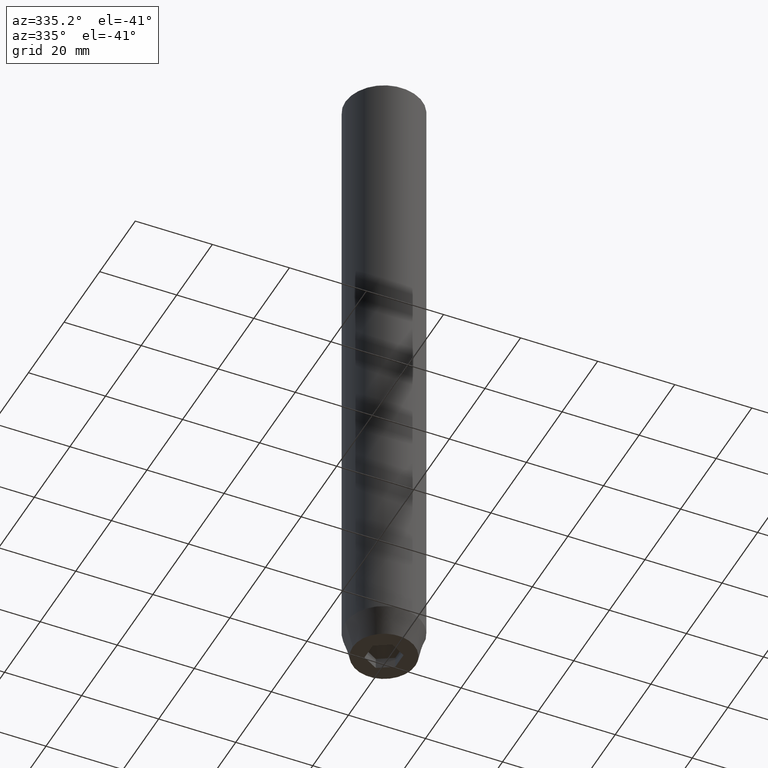
[diagram: clean part render]
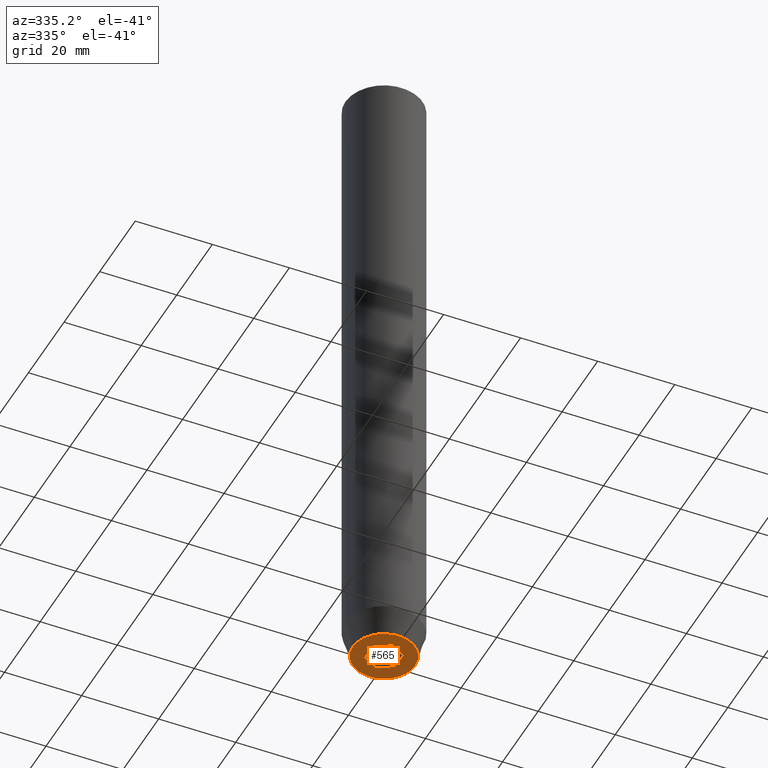
[diagram: same view with one face highlighted and labeled with its STEP entity id]
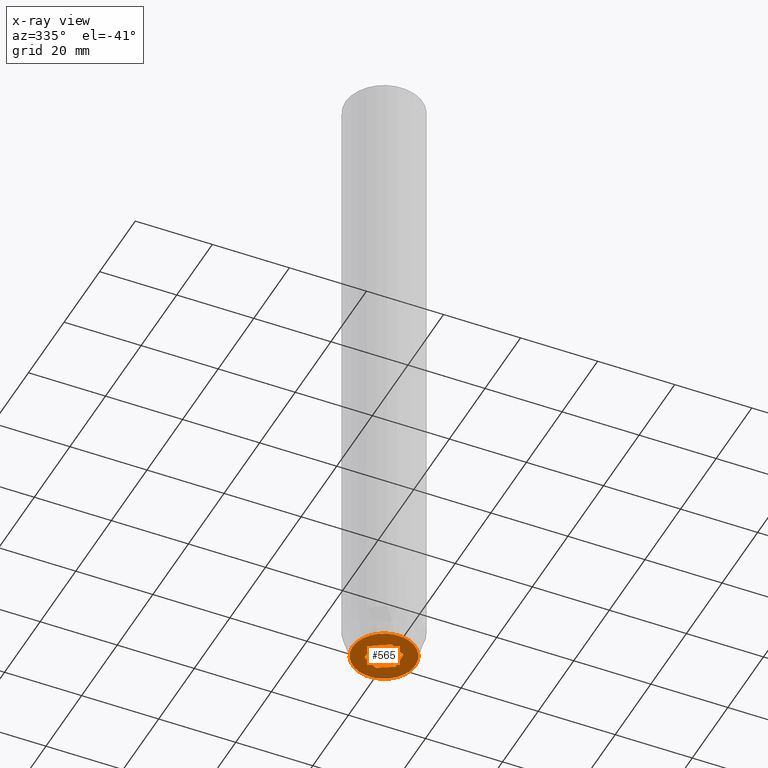
[diagram: x-ray of the same camera — body ghosted, the highlighted face saturated]
A machine part, auxiliary view. The second image highlights one B-rep face of the part: STEP entity #565.
The next image is the same camera in x-ray: the body ghosted, the highlighted face saturated — about 0% of this face is hidden behind the body in this view.
In plain terms, the highlighted planar face has unit normal (0, 0, -1).
Its self-contained STEP definition (entity closure, byte-faithful):
#4 = CARTESIAN_POINT ( 'NONE',  ( 2.000000000000000444, 3.464101615137754386, -170.0000000000000000 ) ) ;
#11 = DIRECTION ( 'NONE',  ( -0.000000000000000000, -0.000000000000000000, 1.000000000000000000 ) ) ;
#16 = DIRECTION ( 'NONE',  ( 0.8660254037844385966, -0.5000000000000001110, 0.000000000000000000 ) ) ;
#32 = VERTEX_POINT ( 'NONE', #563 ) ;
#35 = CARTESIAN_POINT ( 'NONE',  ( 0.000000000000000000, 8.124355652982128362, -170.0000000000000000 ) ) ;
#36 = VERTEX_POINT ( 'NONE', #105 ) ;
#44 = CARTESIAN_POINT ( 'NONE',  ( -2.000000000000000000, 3.464101615137754830, -170.0000000000000000 ) ) ;
#45 = CARTESIAN_POINT ( 'NONE',  ( 0.000000000000000000, 0.000000000000000000, -170.0000000000000000 ) ) ;
#48 = EDGE_CURVE ( 'NONE', #534, #484, #536, .T. ) ;
#49 = EDGE_CURVE ( 'NONE', #36, #557, #227, .T. ) ;
#55 = AXIS2_PLACEMENT_3D ( 'NONE', #45, #233, #319 ) ;
#63 = ORIENTED_EDGE ( 'NONE', *, *, #431, .F. ) ;
#69 = EDGE_CURVE ( 'NONE', #484, #230, #276, .T. ) ;
#74 = CARTESIAN_POINT ( 'NONE',  ( 4.000000000000000000, -2.309401076758502480, -170.0000000000000000 ) ) ;
#75 = EDGE_CURVE ( 'NONE', #557, #32, #289, .T. ) ;
#76 = DIRECTION ( 'NONE',  ( 0.000000000000000000, 1.000000000000000000, 0.000000000000000000 ) ) ;
#87 = DIRECTION ( 'NONE',  ( 0.8660254037844387076, 0.5000000000000001110, 0.000000000000000000 ) ) ;
#89 = ORIENTED_EDGE ( 'NONE', *, *, #49, .F. ) ;
#104 = CIRCLE ( 'NONE', #55, 8.124355652982128362 ) ;
#105 = CARTESIAN_POINT ( 'NONE',  ( -4.000000000000000000, 2.309401076758503368, -170.0000000000000000 ) ) ;
#108 = AXIS2_PLACEMENT_3D ( 'NONE', #512, #11, #467 ) ;
#113 = ORIENTED_EDGE ( 'NONE', *, *, #69, .F. ) ;
#143 = VECTOR ( 'NONE', #87, 999.9999999999998863 ) ;
#146 = CARTESIAN_POINT ( 'NONE',  ( -8.124355652982128362, 1.109796706851640162E-15, -170.0000000000000000 ) ) ;
#155 = ORIENTED_EDGE ( 'NONE', *, *, #394, .F. ) ;
#161 = EDGE_CURVE ( 'NONE', #230, #36, #493, .T. ) ;
#168 = VERTEX_POINT ( 'NONE', #146 ) ;
#214 = EDGE_CURVE ( 'NONE', #315, #168, #104, .T. ) ;
#217 = CARTESIAN_POINT ( 'NONE',  ( 4.336808689942017736E-16, -4.618802153517006737, -170.0000000000000000 ) ) ;
#227 = LINE ( 'NONE', #44, #143 ) ;
#228 = CARTESIAN_POINT ( 'NONE',  ( -4.000000000000000000, -2.309401076758503368, -170.0000000000000000 ) ) ;
#230 = VERTEX_POINT ( 'NONE', #228 ) ;
#232 = CARTESIAN_POINT ( 'NONE',  ( 2.000000000000000888, -3.464101615137754386, -170.0000000000000000 ) ) ;
#233 = DIRECTION ( 'NONE',  ( -0.000000000000000000, -0.000000000000000000, 1.000000000000000000 ) ) ;
#238 = ORIENTED_EDGE ( 'NONE', *, *, #161, .F. ) ;
#239 = CARTESIAN_POINT ( 'NONE',  ( -2.000000000000000888, -3.464101615137754386, -170.0000000000000000 ) ) ;
#246 = CARTESIAN_POINT ( 'NONE',  ( 8.124355652982128362, 0.000000000000000000, -170.0000000000000000 ) ) ;
#265 = PLANE ( 'NONE',  #458 ) ;
#276 = LINE ( 'NONE', #239, #298 ) ;
#289 = LINE ( 'NONE', #4, #529 ) ;
#291 = LINE ( 'NONE', #473, #525 ) ;
#298 = VECTOR ( 'NONE', #419, 1000.000000000000114 ) ;
#315 = VERTEX_POINT ( 'NONE', #246 ) ;
#319 = DIRECTION ( 'NONE',  ( 1.000000000000000000, 0.000000000000000000, 0.000000000000000000 ) ) ;
#326 = ORIENTED_EDGE ( 'NONE', *, *, #214, .F. ) ;
#337 = ORIENTED_EDGE ( 'NONE', *, *, #48, .F. ) ;
#353 = DIRECTION ( 'NONE',  ( 0.000000000000000000, 0.000000000000000000, -1.000000000000000000 ) ) ;
#358 = DIRECTION ( 'NONE',  ( -0.8660254037844384856, -0.5000000000000002220, 0.000000000000000000 ) ) ;
#377 = VECTOR ( 'NONE', #358, 1000.000000000000114 ) ;
#394 = EDGE_CURVE ( 'NONE', #32, #534, #291, .T. ) ;
#419 = DIRECTION ( 'NONE',  ( -0.8660254037844384856, 0.5000000000000002220, 0.000000000000000000 ) ) ;
#431 = EDGE_CURVE ( 'NONE', #168, #315, #437, .T. ) ;
#437 = CIRCLE ( 'NONE', #108, 8.124355652982128362 ) ;
#440 = CARTESIAN_POINT ( 'NONE',  ( 0.000000000000000000, 4.618802153517006737, -170.0000000000000000 ) ) ;
#441 = CARTESIAN_POINT ( 'NONE',  ( -4.000000000000000000, 0.000000000000000000, -170.0000000000000000 ) ) ;
#442 = ORIENTED_EDGE ( 'NONE', *, *, #75, .F. ) ;
#446 = FACE_BOUND ( 'NONE', #585, .T. ) ;
#458 = AXIS2_PLACEMENT_3D ( 'NONE', #35, #353, #527 ) ;
#467 = DIRECTION ( 'NONE',  ( 1.000000000000000000, 0.000000000000000000, 0.000000000000000000 ) ) ;
#473 = CARTESIAN_POINT ( 'NONE',  ( 4.000000000000000000, 0.000000000000000000, -170.0000000000000000 ) ) ;
#479 = EDGE_LOOP ( 'NONE', ( #326, #63 ) ) ;
#480 = DIRECTION ( 'NONE',  ( 0.000000000000000000, -1.000000000000000000, 0.000000000000000000 ) ) ;
#484 = VERTEX_POINT ( 'NONE', #217 ) ;
#489 = VECTOR ( 'NONE', #76, 1000.000000000000000 ) ;
#493 = LINE ( 'NONE', #441, #489 ) ;
#512 = CARTESIAN_POINT ( 'NONE',  ( 0.000000000000000000, 0.000000000000000000, -170.0000000000000000 ) ) ;
#525 = VECTOR ( 'NONE', #480, 1000.000000000000000 ) ;
#527 = DIRECTION ( 'NONE',  ( -1.000000000000000000, 0.000000000000000000, -0.000000000000000000 ) ) ;
#529 = VECTOR ( 'NONE', #16, 1000.000000000000000 ) ;
#534 = VERTEX_POINT ( 'NONE', #74 ) ;
#536 = LINE ( 'NONE', #232, #377 ) ;
#557 = VERTEX_POINT ( 'NONE', #440 ) ;
#563 = CARTESIAN_POINT ( 'NONE',  ( 4.000000000000000000, 2.309401076758503368, -170.0000000000000000 ) ) ;
#565 = ADVANCED_FACE ( 'NONE', ( #446, #569 ), #265, .T. ) ;
#569 = FACE_OUTER_BOUND ( 'NONE', #479, .T. ) ;
#585 = EDGE_LOOP ( 'NONE', ( #89, #238, #113, #337, #155, #442 ) ) ;